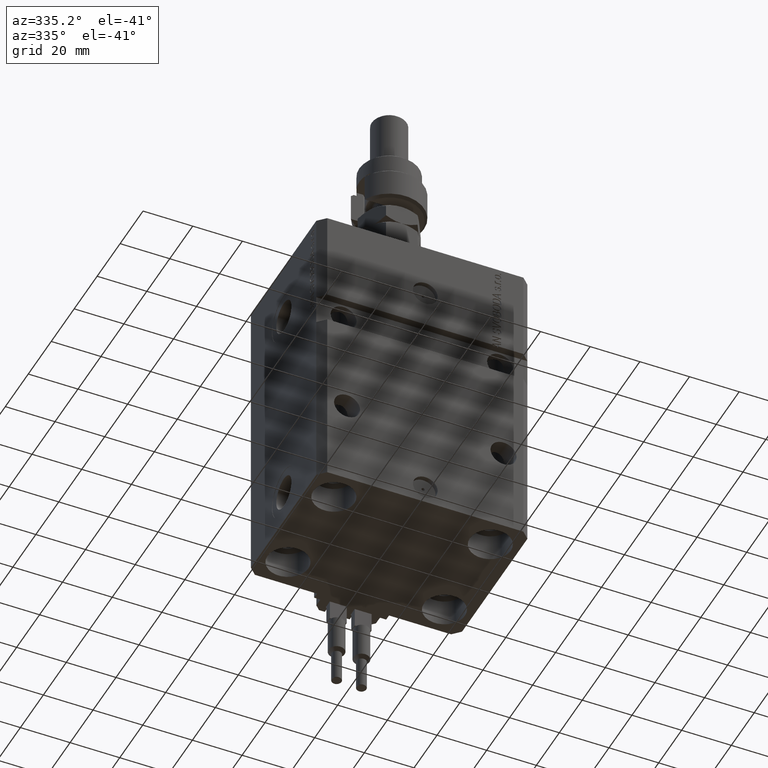
[diagram: clean part render]
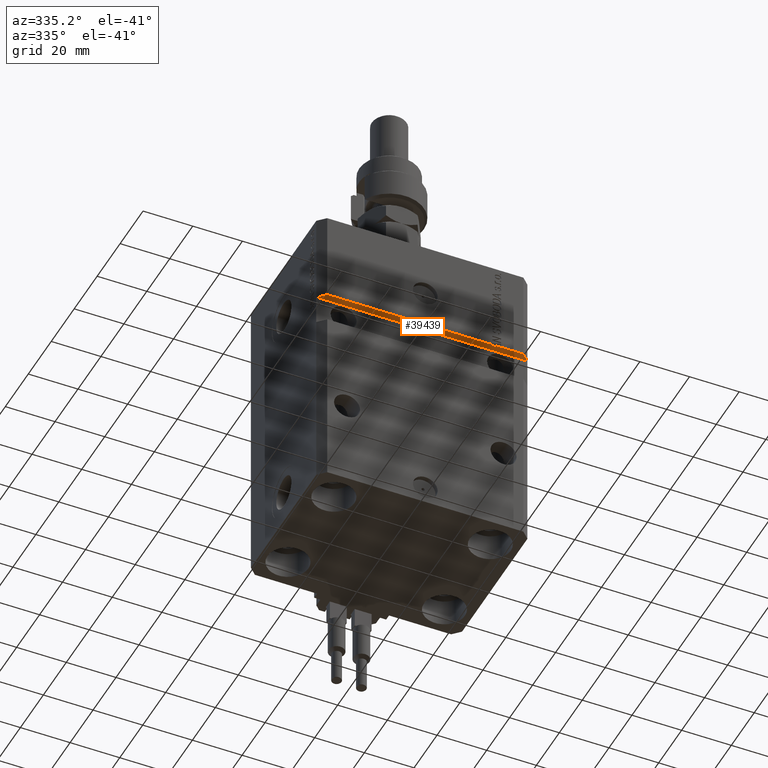
[diagram: same view with one face highlighted and labeled with its STEP entity id]
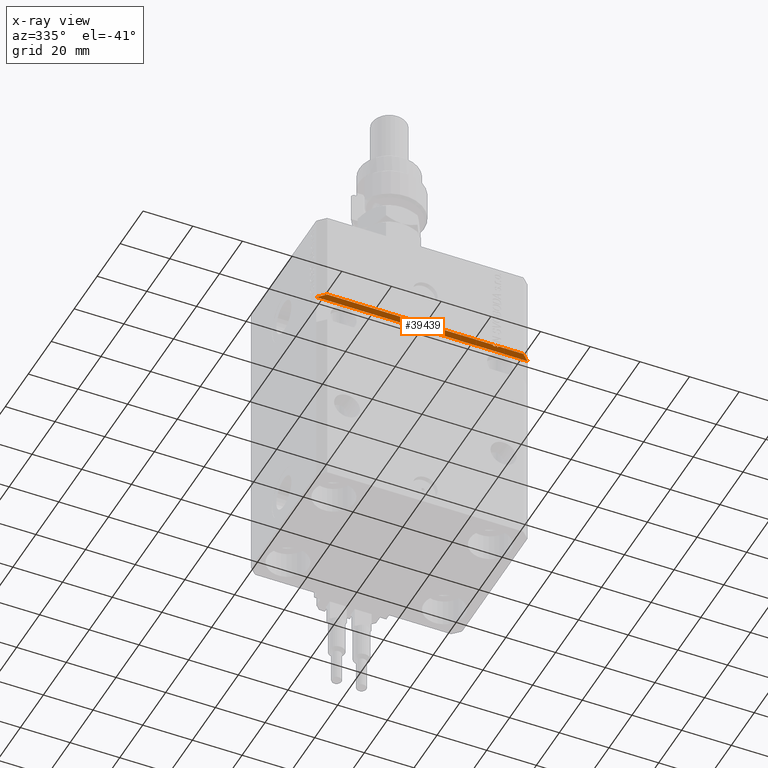
[diagram: x-ray of the same camera — body ghosted, the highlighted face saturated]
A machine part, auxiliary view. The second image highlights one B-rep face of the part: STEP entity #39439.
The next image is the same camera in x-ray: the body ghosted, the highlighted face saturated — about 0% of this face is hidden behind the body in this view.
In plain terms, the highlighted planar face has unit normal (-0, -0, 1).
Its self-contained STEP definition (entity closure, byte-faithful):
#701 = DIRECTION ( 'NONE',  ( -1.000000000000000000, 0.000000000000000000, -8.163404592832031500E-17 ) ) ;
#1340 = DIRECTION ( 'NONE',  ( -0.7071067811865472397, 0.7071067811865479058, -5.772398745160932566E-17 ) ) ;
#1635 = DIRECTION ( 'NONE',  ( -2.352167425053553784E-16, 1.000000000000000000, -9.600847180395946180E-33 ) ) ;
#1670 = DIRECTION ( 'NONE',  ( 2.352167425053553291E-16, -1.000000000000000000, 9.600847180395940707E-33 ) ) ;
#2247 = VECTOR ( 'NONE', #701, 1000.000000000000000 ) ;
#2890 = ORIENTED_EDGE ( 'NONE', *, *, #25335, .T. ) ;
#3094 = VERTEX_POINT ( 'NONE', #43712 ) ;
#4285 = CARTESIAN_POINT ( 'NONE',  ( 2.902851328095174237E-15, -30.99999999999997868, -37.00000000000000711 ) ) ;
#4844 = VERTEX_POINT ( 'NONE', #13974 ) ;
#5292 = VECTOR ( 'NONE', #1340, 1000.000000000000000 ) ;
#6021 = EDGE_CURVE ( 'NONE', #37812, #28907, #17352, .T. ) ;
#6088 = CARTESIAN_POINT ( 'NONE',  ( 42.50000000000001421, -28.49999999999999289, -37.00000000000000000 ) ) ;
#6895 = DIRECTION ( 'NONE',  ( -1.000000000000000000, 0.000000000000000000, -8.163404592832031500E-17 ) ) ;
#7245 = ORIENTED_EDGE ( 'NONE', *, *, #19660, .T. ) ;
#7302 = VECTOR ( 'NONE', #1635, 1000.000000000000000 ) ;
#7937 = CARTESIAN_POINT ( 'NONE',  ( 28.43744795748428800, -31.49999999999999289, -37.00000000000000000 ) ) ;
#8865 = EDGE_CURVE ( 'NONE', #11547, #22192, #32801, .T. ) ;
#9664 = CARTESIAN_POINT ( 'NONE',  ( 29.45454545454544260, -30.99999999999999289, -37.00000000000000000 ) ) ;
#10510 = DIRECTION ( 'NONE',  ( 1.000000000000000000, 0.000000000000000000, 8.163404592832031500E-17 ) ) ;
#11364 = VECTOR ( 'NONE', #6895, 1000.000000000000000 ) ;
#11547 = VERTEX_POINT ( 'NONE', #38913 ) ;
#11984 = CARTESIAN_POINT ( 'NONE',  ( 27.36912325285895164, -30.99999999999998579, -37.00000000000000711 ) ) ;
#12180 = LINE ( 'NONE', #31561, #2247 ) ;
#12663 = ORIENTED_EDGE ( 'NONE', *, *, #6021, .F. ) ;
#13081 = DIRECTION ( 'NONE',  ( -2.352167425053553784E-16, 1.000000000000000000, -9.600847180395943443E-33 ) ) ;
#13257 = VECTOR ( 'NONE', #30420, 1000.000000000000000 ) ;
#13558 = VECTOR ( 'NONE', #32791, 1000.000000000000000 ) ;
#13833 = ORIENTED_EDGE ( 'NONE', *, *, #36540, .T. ) ;
#13974 = CARTESIAN_POINT ( 'NONE',  ( 27.36912325285900494, -31.49999999999999289, -37.00000000000000711 ) ) ;
#14742 = LINE ( 'NONE', #18423, #11364 ) ;
#16117 = CARTESIAN_POINT ( 'NONE',  ( 29.45454545454544260, -30.99999999999997868, -37.00000000000000711 ) ) ;
#17129 = VERTEX_POINT ( 'NONE', #27120 ) ;
#17352 = LINE ( 'NONE', #45115, #13558 ) ;
#17580 = EDGE_CURVE ( 'NONE', #31532, #19476, #14742, .T. ) ;
#18197 = CARTESIAN_POINT ( 'NONE',  ( 29.04545454545453254, -30.99999999999999289, -37.00000000000000000 ) ) ;
#18290 = EDGE_CURVE ( 'NONE', #25800, #38927, #12180, .T. ) ;
#18423 = CARTESIAN_POINT ( 'NONE',  ( -39.50000000000001421, -31.50000000000000000, -37.00000000000000711 ) ) ;
#18901 = ORIENTED_EDGE ( 'NONE', *, *, #44816, .T. ) ;
#18974 = CARTESIAN_POINT ( 'NONE',  ( 29.04545454545453254, -31.49999999999999289, -37.00000000000000000 ) ) ;
#19469 = DIRECTION ( 'NONE',  ( -1.000000000000000000, -1.632680918566406300E-16, -8.163404592832031500E-17 ) ) ;
#19476 = VERTEX_POINT ( 'NONE', #7937 ) ;
#19660 = EDGE_CURVE ( 'NONE', #22192, #4844, #40934, .T. ) ;
#20138 = EDGE_CURVE ( 'NONE', #19476, #11547, #50277, .T. ) ;
#20244 = DIRECTION ( 'NONE',  ( -1.000000000000000000, 0.000000000000000000, -8.163404592832031500E-17 ) ) ;
#21237 = VECTOR ( 'NONE', #20244, 1000.000000000000000 ) ;
#22056 = FACE_OUTER_BOUND ( 'NONE', #38610, .T. ) ;
#22192 = VERTEX_POINT ( 'NONE', #11984 ) ;
#22301 = CARTESIAN_POINT ( 'NONE',  ( 42.50000000000001421, -31.49999999999999289, -37.00000000000000000 ) ) ;
#23734 = CARTESIAN_POINT ( 'NONE',  ( -42.50000000000000000, -28.50000000000000711, -37.00000000000000711 ) ) ;
#25335 = EDGE_CURVE ( 'NONE', #4844, #43496, #29919, .T. ) ;
#25636 = LINE ( 'NONE', #9664, #41583 ) ;
#25800 = VERTEX_POINT ( 'NONE', #16117 ) ;
#27120 = CARTESIAN_POINT ( 'NONE',  ( 29.45454545454544260, -31.49999999999999289, -37.00000000000000000 ) ) ;
#27423 = VECTOR ( 'NONE', #44798, 1000.000000000000000 ) ;
#28343 = DIRECTION ( 'NONE',  ( -0.7071067811865483499, -0.7071067811865467956, -5.772398745160944892E-17 ) ) ;
#28907 = VERTEX_POINT ( 'NONE', #23734 ) ;
#29374 = CARTESIAN_POINT ( 'NONE',  ( 28.43744795748432352, -30.99999999999999289, -37.00000000000000000 ) ) ;
#29919 = LINE ( 'NONE', #22301, #13257 ) ;
#30420 = DIRECTION ( 'NONE',  ( -1.000000000000000000, -1.632680918566406300E-16, -8.163404592832031500E-17 ) ) ;
#30812 = EDGE_CURVE ( 'NONE', #37812, #3094, #31983, .T. ) ;
#31532 = VERTEX_POINT ( 'NONE', #18974 ) ;
#31561 = CARTESIAN_POINT ( 'NONE',  ( 2.902851328095174237E-15, -30.99999999999997868, -37.00000000000000711 ) ) ;
#31983 = LINE ( 'NONE', #47975, #45319 ) ;
#32791 = DIRECTION ( 'NONE',  ( -1.000000000000000000, -1.632680918566406300E-16, -8.163404592832031500E-17 ) ) ;
#32801 = LINE ( 'NONE', #4285, #21237 ) ;
#33004 = LINE ( 'NONE', #33773, #27423 ) ;
#33773 = CARTESIAN_POINT ( 'NONE',  ( 29.04545454545453254, -30.99999999999999289, -37.00000000000000000 ) ) ;
#34106 = ORIENTED_EDGE ( 'NONE', *, *, #30812, .T. ) ;
#35041 = VECTOR ( 'NONE', #19469, 1000.000000000000000 ) ;
#35429 = LINE ( 'NONE', #47493, #35041 ) ;
#36540 = EDGE_CURVE ( 'NONE', #43496, #28907, #37178, .T. ) ;
#37178 = LINE ( 'NONE', #40599, #5292 ) ;
#37757 = ORIENTED_EDGE ( 'NONE', *, *, #18290, .T. ) ;
#37812 = VERTEX_POINT ( 'NONE', #50182 ) ;
#38548 = ORIENTED_EDGE ( 'NONE', *, *, #20138, .T. ) ;
#38610 = EDGE_LOOP ( 'NONE', ( #34106, #44343, #18901, #37757, #40358, #48279, #38548, #45270, #7245, #2890, #13833, #12663 ) ) ;
#38913 = CARTESIAN_POINT ( 'NONE',  ( 28.43744795748432352, -30.99999999999999289, -37.00000000000000000 ) ) ;
#38927 = VERTEX_POINT ( 'NONE', #18197 ) ;
#39439 = ADVANCED_FACE ( 'NONE', ( #22056 ), #46141, .F. ) ;
#40358 = ORIENTED_EDGE ( 'NONE', *, *, #50319, .T. ) ;
#40599 = CARTESIAN_POINT ( 'NONE',  ( -42.50000000000000711, -28.49999999999999645, -37.00000000000000711 ) ) ;
#40934 = LINE ( 'NONE', #49057, #48275 ) ;
#41583 = VECTOR ( 'NONE', #13081, 1000.000000000000000 ) ;
#42713 = DIRECTION ( 'NONE',  ( -8.163404592832031500E-17, -9.600847180396129553E-33, 1.000000000000000000 ) ) ;
#43496 = VERTEX_POINT ( 'NONE', #50338 ) ;
#43712 = CARTESIAN_POINT ( 'NONE',  ( 39.50000000000000711, -31.49999999999999289, -37.00000000000000000 ) ) ;
#44343 = ORIENTED_EDGE ( 'NONE', *, *, #50819, .T. ) ;
#44798 = DIRECTION ( 'NONE',  ( 2.352167425053553784E-16, -1.000000000000000000, 9.600847180395943443E-33 ) ) ;
#44816 = EDGE_CURVE ( 'NONE', #17129, #25800, #25636, .T. ) ;
#45115 = CARTESIAN_POINT ( 'NONE',  ( 42.50000000000001421, -28.49999999999999289, -37.00000000000000000 ) ) ;
#45270 = ORIENTED_EDGE ( 'NONE', *, *, #8865, .T. ) ;
#45319 = VECTOR ( 'NONE', #28343, 1000.000000000000000 ) ;
#46141 = PLANE ( 'NONE',  #50527 ) ;
#47493 = CARTESIAN_POINT ( 'NONE',  ( 42.50000000000001421, -31.49999999999999289, -37.00000000000000000 ) ) ;
#47975 = CARTESIAN_POINT ( 'NONE',  ( 39.50000000000000000, -31.50000000000000711, -37.00000000000000711 ) ) ;
#48275 = VECTOR ( 'NONE', #1670, 1000.000000000000000 ) ;
#48279 = ORIENTED_EDGE ( 'NONE', *, *, #17580, .T. ) ;
#49057 = CARTESIAN_POINT ( 'NONE',  ( 27.36912325285895164, -30.99999999999999289, -37.00000000000000000 ) ) ;
#50182 = CARTESIAN_POINT ( 'NONE',  ( 42.50000000000001421, -28.49999999999999289, -37.00000000000000000 ) ) ;
#50277 = LINE ( 'NONE', #29374, #7302 ) ;
#50319 = EDGE_CURVE ( 'NONE', #38927, #31532, #33004, .T. ) ;
#50338 = CARTESIAN_POINT ( 'NONE',  ( -39.50000000000000000, -31.50000000000000711, -37.00000000000000711 ) ) ;
#50527 = AXIS2_PLACEMENT_3D ( 'NONE', #6088, #42713, #10510 ) ;
#50819 = EDGE_CURVE ( 'NONE', #3094, #17129, #35429, .T. ) ;